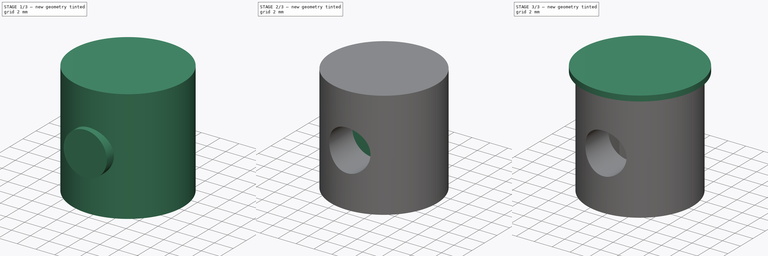
[diagram: build sequence overview — one tinted view per stage of 3, left to right]
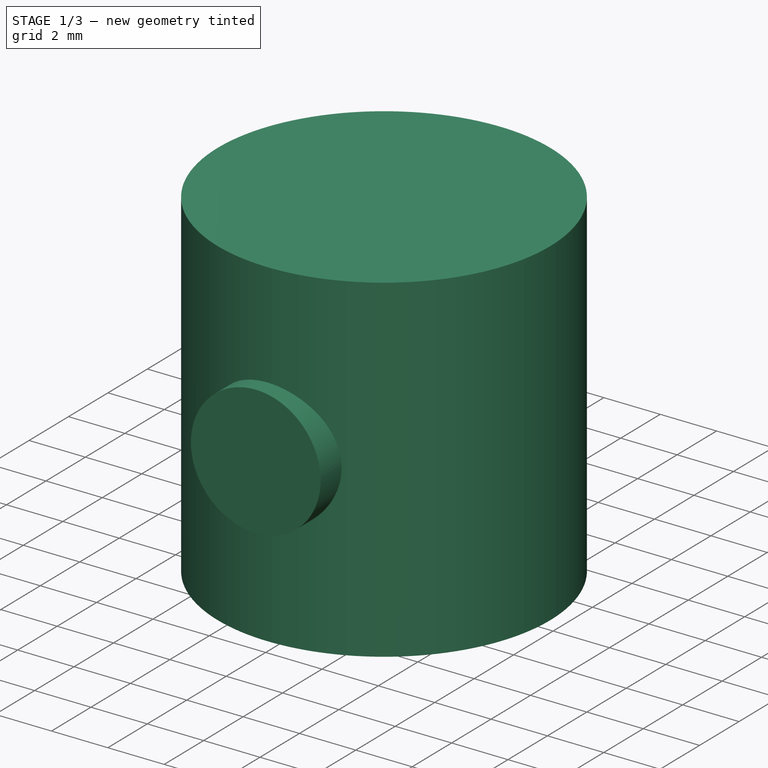
[diagram: stage 1 of 3 — iso view after this stage's code; geometry added in this stage tinted green]
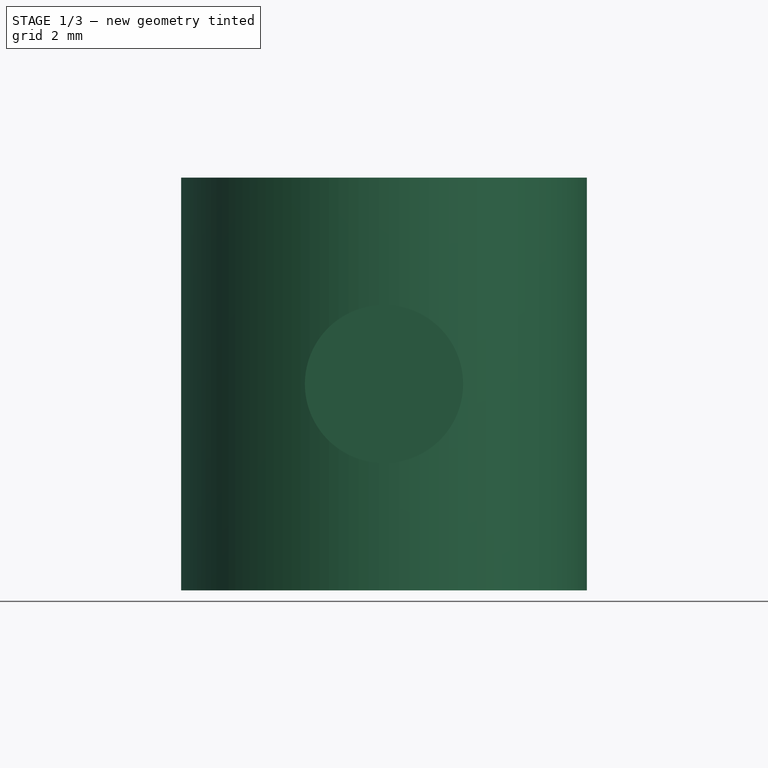
[diagram: stage 1 of 3 — front view after this stage's code; geometry added in this stage tinted green]
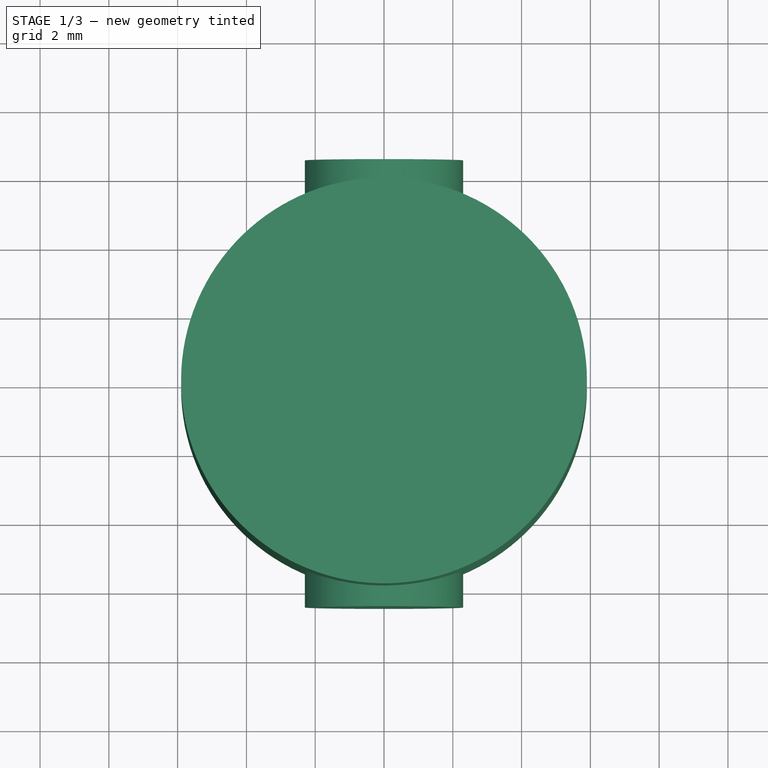
[diagram: stage 1 of 3 — top view after this stage's code; geometry added in this stage tinted green]
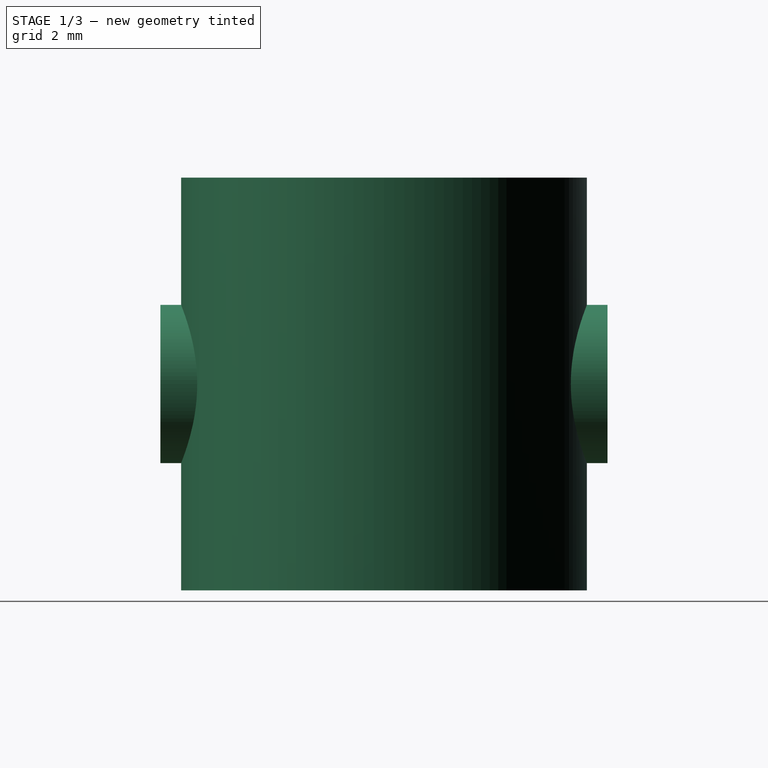
[diagram: stage 1 of 3 — right view after this stage's code; geometry added in this stage tinted green]
FCSTD DOCUMENT  (FreeCAD 0.15R4671 (Git))
Label: Schraubduebel
License: All rights reserved
LicenseURL: http://de.wikipedia.org/wiki/Alle_Rechte_vorbehalten
objects: Sketcher::SketchObject×4, PartDesign::Pad×4, Part::Cut×2
note: 14 computed .brp shape members not serialized (recipe doc carries the construction recipe); baked Part::Feature solids carry a one-line shape summary decoded from their .brp

FEATURE [Sketcher::SketchObject] Sketch
  sketch-geometry (1):
    g0: Circle CenterX=0 CenterY=0 CenterZ=0 NormalX=0 NormalY=0 NormalZ=1 Radius=5.9
  constraints (2):
    c: Coincident(g0,g-1)
    c: Radius(g0) = 5.9
FEATURE [PartDesign::Pad] Pad
  Length = 12
  Length2 = 100
  Midplane = true
  Sketch = -> Sketch
  Type = 0
FEATURE [Sketcher::SketchObject] Sketch002
  Placement = pos=(0,0,0) rot=(-1,0,0;4.71239rad)
  sketch-geometry (1):
    g0: Circle CenterX=0 CenterY=0 CenterZ=0 NormalX=0 NormalY=0 NormalZ=1 Radius=2.3
  constraints (2):
    c: Coincident(g0,g-1)
    c: Radius(g0) = 2.3
FEATURE [PartDesign::Pad] Pad002
  Length = 13
  Length2 = 100
  Midplane = true
  Placement = pos=(0,0,0) rot=(-1,0,0;4.71239rad)
  Sketch = -> Sketch002
  Type = 0
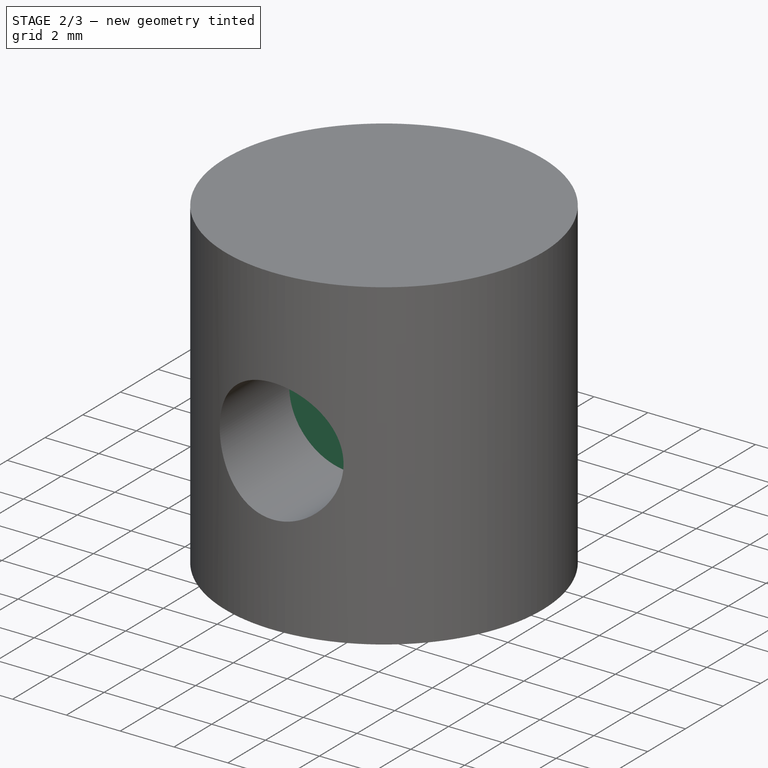
[diagram: stage 2 of 3 — iso view after this stage's code; geometry added in this stage tinted green]
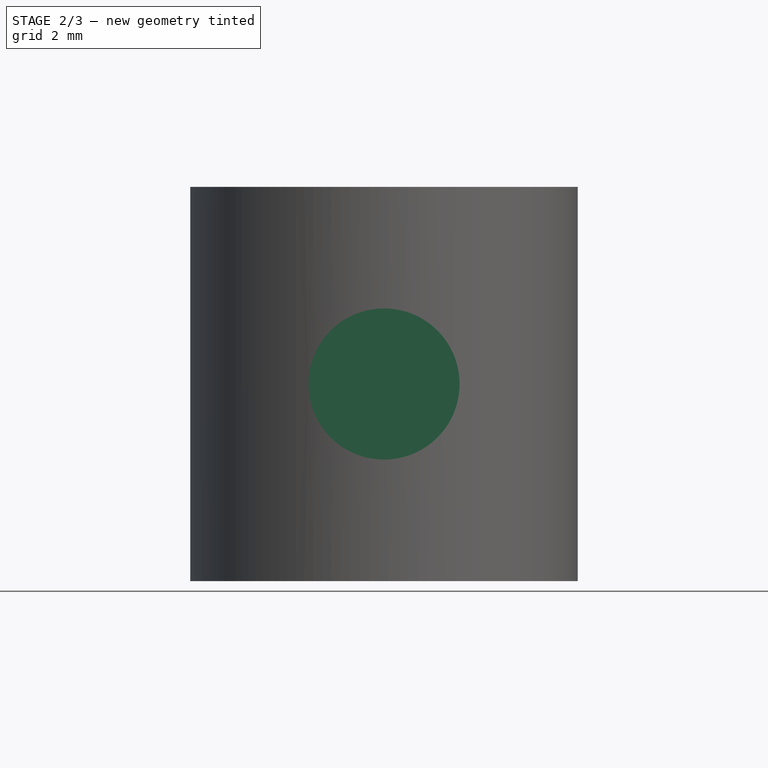
[diagram: stage 2 of 3 — front view after this stage's code; geometry added in this stage tinted green]
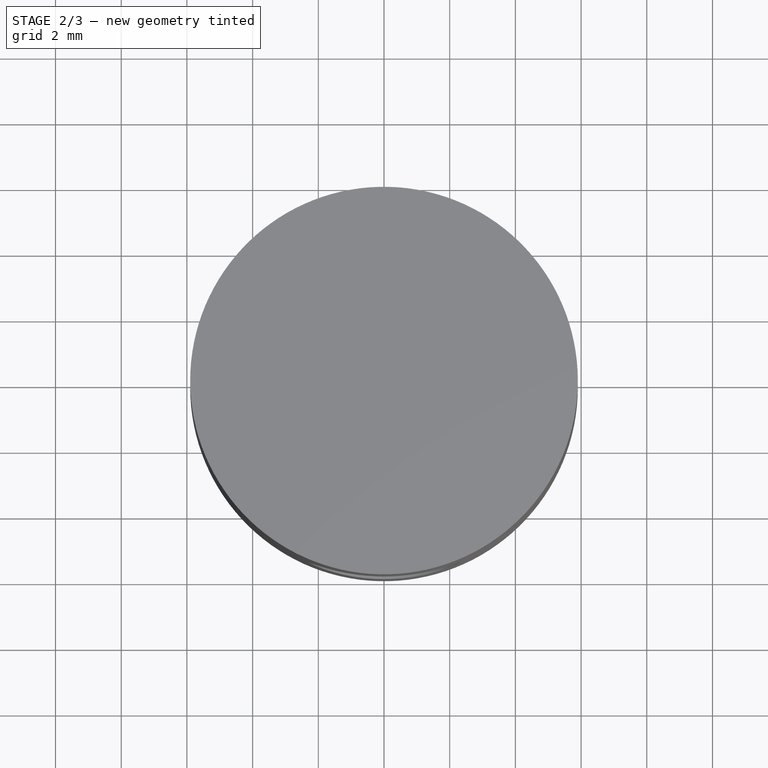
[diagram: stage 2 of 3 — top view after this stage's code; geometry added in this stage tinted green]
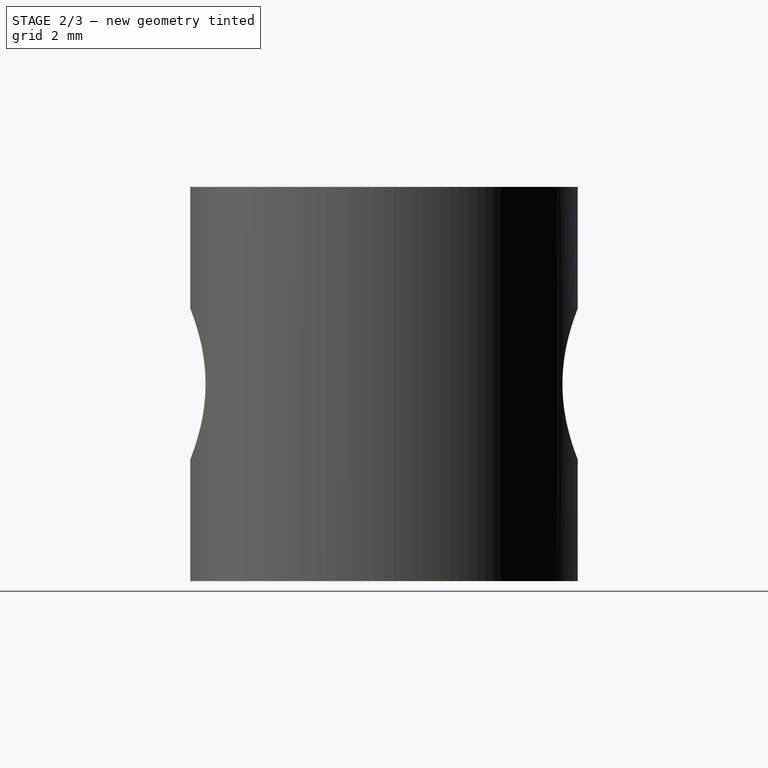
[diagram: stage 2 of 3 — right view after this stage's code; geometry added in this stage tinted green]
FEATURE [Sketcher::SketchObject] Sketch001
  Placement = pos=(0,0,0) rot=(-1,0,0;4.71239rad)
  sketch-geometry (10):
    g0: LineSegment [constr] StartX=0 StartY=-4.07032 StartZ=0 EndX=3.525 EndY=-2.03516 EndZ=0
    g1: LineSegment StartX=3.525 StartY=-2.03516 StartZ=0 EndX=3.525 EndY=2.03516 EndZ=0
    g2: LineSegment StartX=3.525 StartY=2.03516 StartZ=0 EndX=0 EndY=4.07032 EndZ=0
    g3: LineSegment StartX=0 StartY=4.07032 StartZ=0 EndX=-3.525 EndY=2.03516 EndZ=0
    g4: LineSegment StartX=-3.525 StartY=2.03516 StartZ=0 EndX=-3.525 EndY=-2.03516 EndZ=0
    g5: LineSegment [constr] StartX=-3.525 StartY=-2.03516 StartZ=0 EndX=0 EndY=-4.07032 EndZ=0
    g6: Circle [constr] CenterX=0 CenterY=0 CenterZ=0 NormalX=0 NormalY=0 NormalZ=1 Radius=4.07032
    g7: LineSegment StartX=-3.525 StartY=-2.03516 StartZ=0 EndX=-3.525 EndY=-6 EndZ=0
    g8: LineSegment StartX=-3.525 StartY=-6 StartZ=0 EndX=3.525 EndY=-6 EndZ=0
    g9: LineSegment StartX=3.525 StartY=-6 StartZ=0 EndX=3.525 EndY=-2.03516 EndZ=0
  constraints (24):
    c: Coincident(g0,g1)
    c: Coincident(g1,g2)
    c: Coincident(g2,g3)
    c: Coincident(g3,g4)
    c: Coincident(g4,g5)
    c: Coincident(g5,g0)
    c: Equal(g0, g1-g5) x5
    c: PointOnObject(g0,g6)
    c: PointOnObject(g1,g6)
    c: PointOnObject(g2,g6)
    c: PointOnObject(g3,g6)
    c: PointOnObject(g4,g6)
    c: PointOnObject(g5,g6)
    c: Vertical(g4)
    c: Distance(g4,g0) = 7.05
    c: Coincident(g6,g-1)
    c: Vertical(g7)
    c: Coincident(g7,g8)
    c: Horizontal(g8)
    c: Coincident(g8,g9)
    c: Vertical(g9)
    c: Coincident(g4,g7)
    c: Coincident(g0,g9)
    c: DistanceY(g-1,g8) = -6
FEATURE [PartDesign::Pad] Pad001
  Length = 3.5
  Length2 = 100
  Midplane = true
  Placement = pos=(0,0,0) rot=(-1,0,0;4.71239rad)
  Sketch = -> Sketch001
  Type = 0
FEATURE [Part::Cut] Cut
  Base = -> Pad
  Tool = -> Pad002
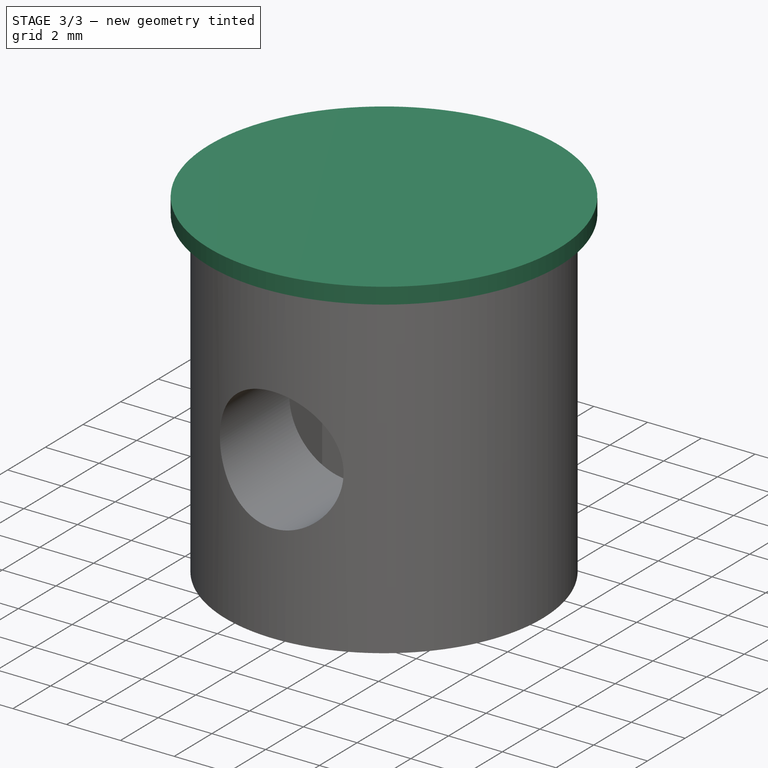
[diagram: stage 3 of 3 — iso view after this stage's code; geometry added in this stage tinted green]
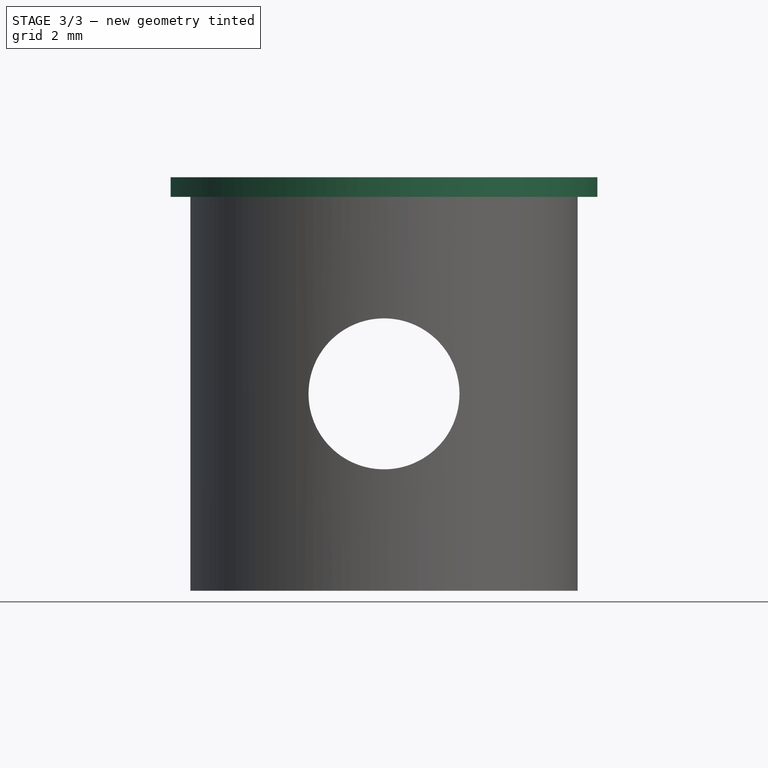
[diagram: stage 3 of 3 — front view after this stage's code; geometry added in this stage tinted green]
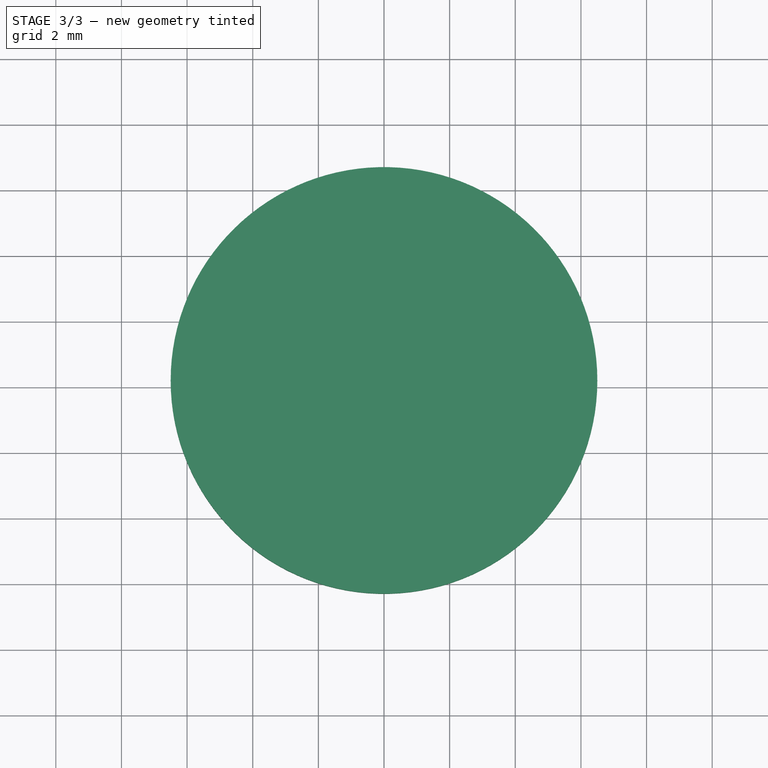
[diagram: stage 3 of 3 — top view after this stage's code; geometry added in this stage tinted green]
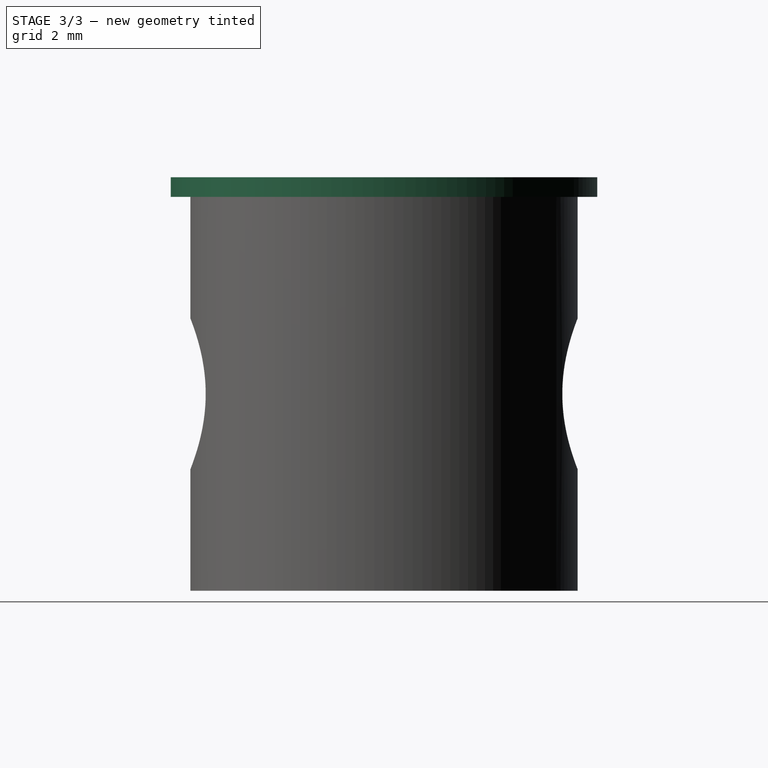
[diagram: stage 3 of 3 — right view after this stage's code; geometry added in this stage tinted green]
FEATURE [Part::Cut] Cut001
  Base = -> Cut
  Tool = -> Pad001
FEATURE [Sketcher::SketchObject] Sketch003
  Placement = pos=(0,0,6) rot=(0,0,1;0rad)
  Support = -> Cut001 [Face3]
  sketch-geometry (1):
    g0: Circle CenterX=0 CenterY=0 CenterZ=0 NormalX=0 NormalY=0 NormalZ=1 Radius=6.5
  constraints (2):
    c: Coincident(g0,g-1)
    c: Radius(g0) = 6.5
FEATURE [PartDesign::Pad] Pad003
  Length = 0.6
  Length2 = 100
  Sketch = -> Sketch003
  Type = 0
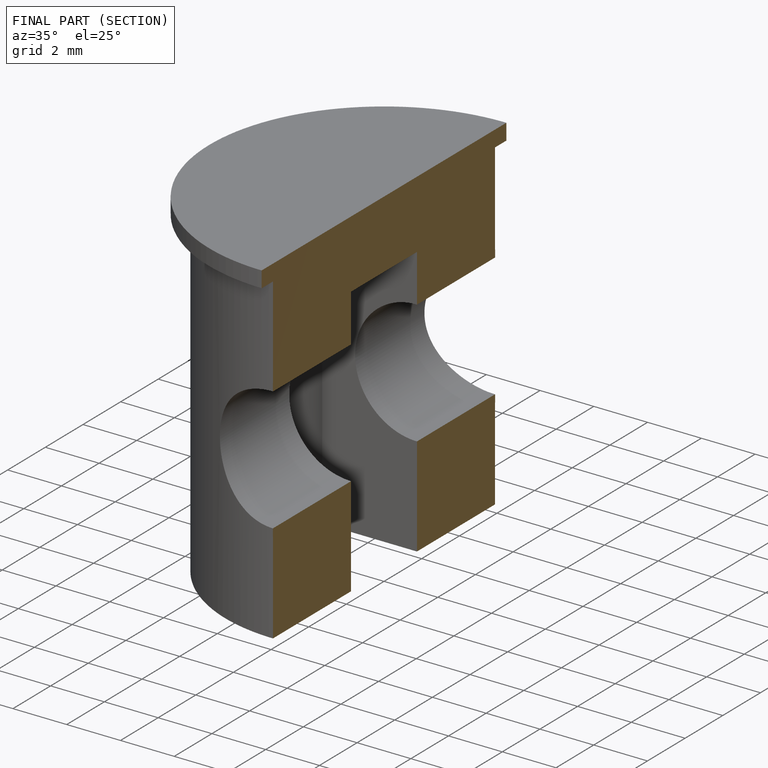
[diagram: finished part — half-section view (interior)]
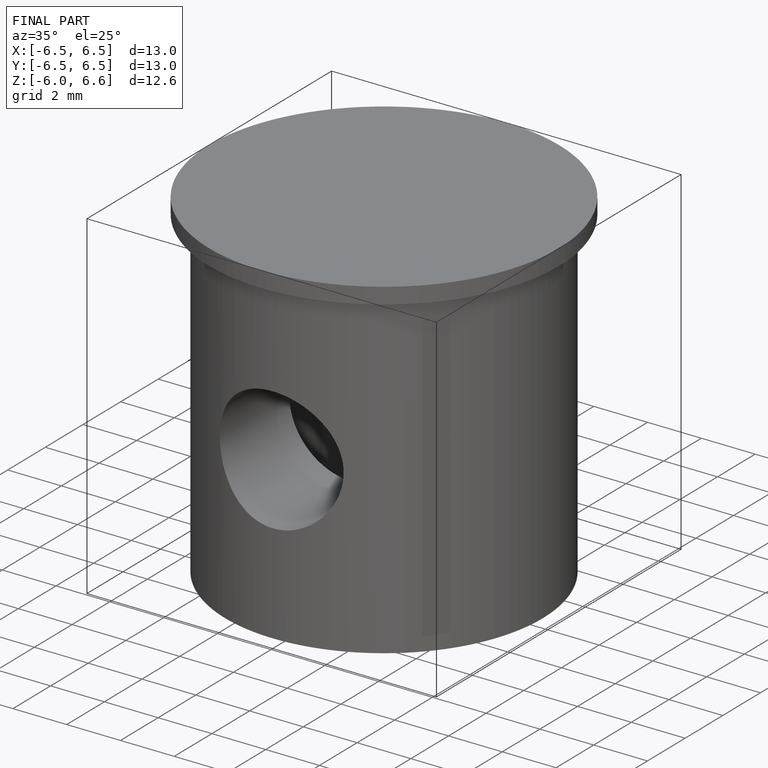
[diagram: finished part — iso view with bounding-box wireframe]
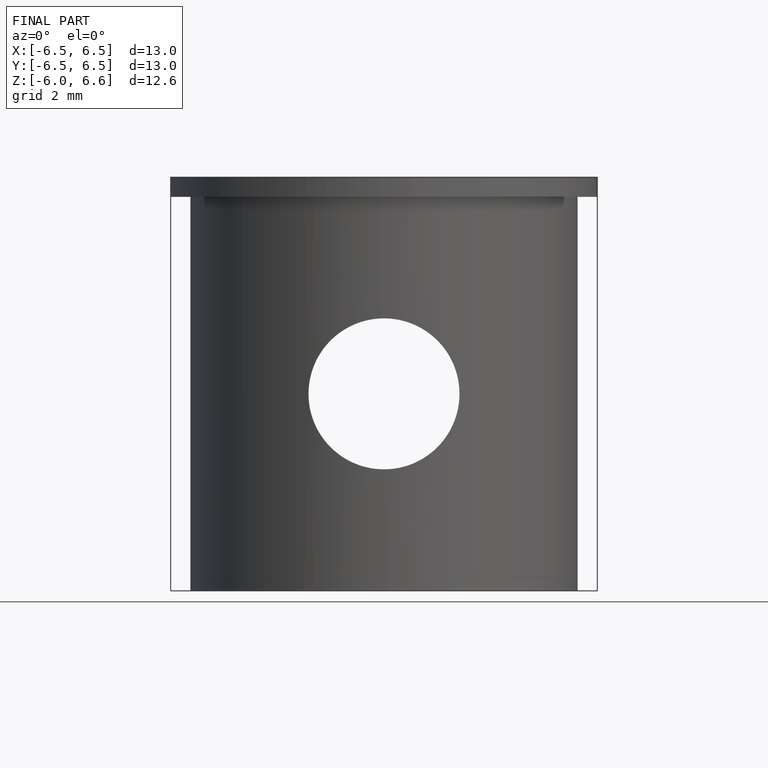
[diagram: finished part — front view with bounding-box wireframe]
